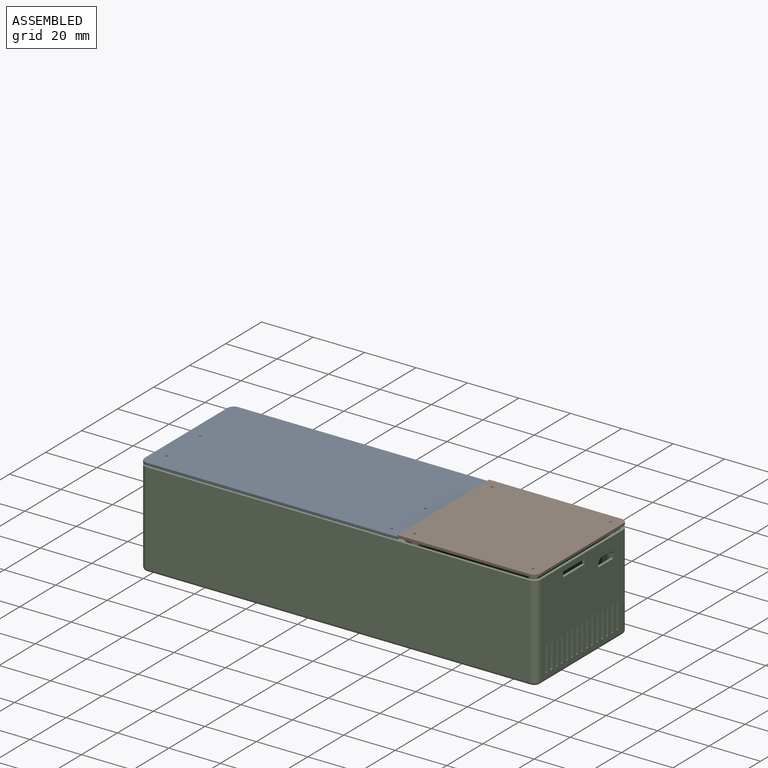
[diagram: assembled view]
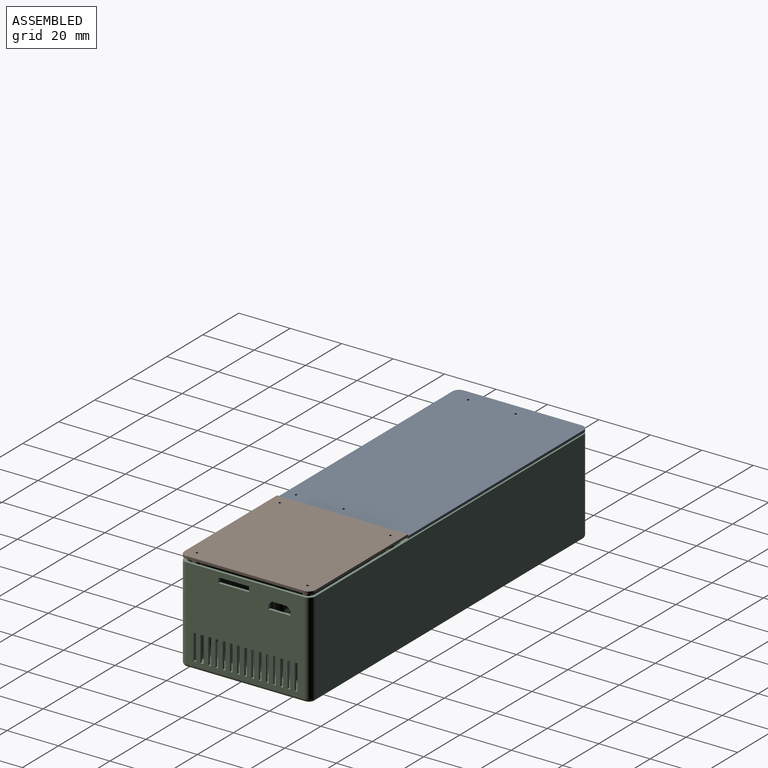
[diagram: assembled view, second angle]
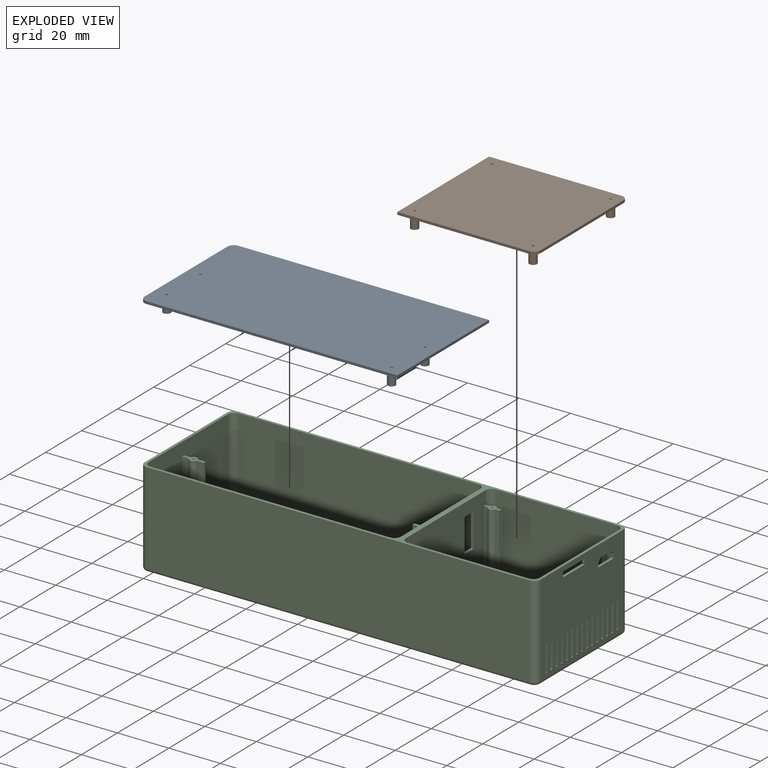
[diagram: exploded view]
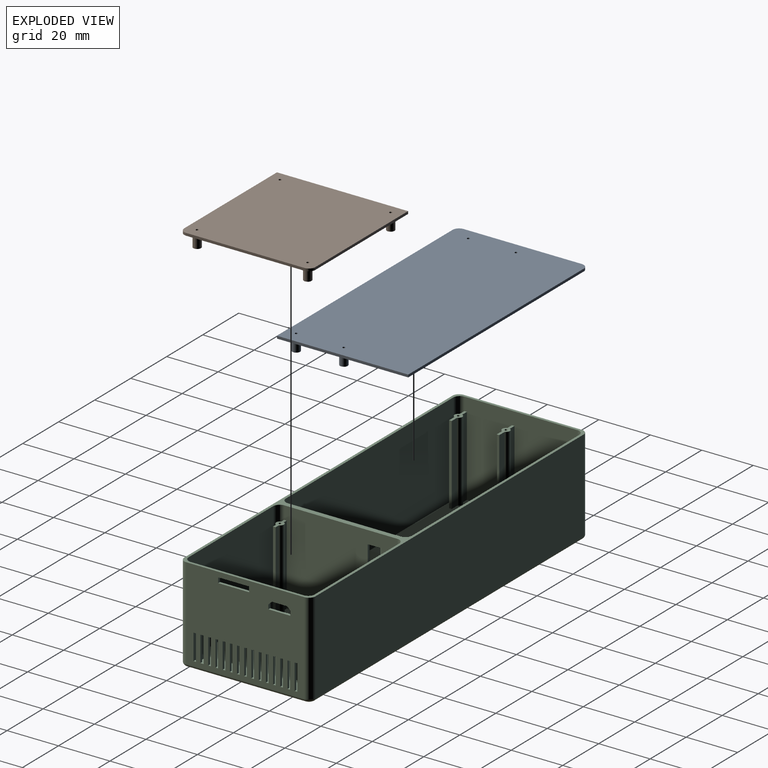
[diagram: exploded view, second angle]
ASSEMBLY  parts=3 mates=2
PART A: 20 faces, bbox 51x100x6.1 mm
  f0: plane 97.46x0.99mm, normal (-1,0,0), area 96.5mm2, adj f3,f4,f5,f18
  f1: plane 45.92x0.99mm, normal (0,-1,0), area 45.5mm2, adj f4,f5,f18,f19
  f2: plane 97.46x0.99mm, normal (1,0,0), area 96.5mm2, adj f3,f4,f5,f19
  f3: plane 51x0.99mm, normal (0,1,0), area 50.5mm2, adj f0,f2,f4,f5
  f4: plane 100x51mm, normal (0,0,1), area 5069.3mm2, adj f0,f1,f2,f3,f6,f8,f10,f12
  f5: plane 100x51mm, normal (0,0,-1), area 5094.5mm2, adj f0,f1,f2,f3,f14,f15,f16,f17
  f6: cylinder r=1.5mm len=5.08mm, axis (0,0,-1), area 47.8mm2, adj f4,f7
  f7: plane 3x3mm, normal (0,0,1), area 6.3mm2, adj f6,f14
  f8: cylinder r=1.5mm len=5.08mm, axis (0,0,-1), area 47.8mm2, adj f4,f9
  f9: plane 3x3mm, normal (0,0,1), area 6.3mm2, adj f8,f16
  f10: cylinder r=1.5mm len=5.08mm, axis (0,0,-1), area 47.8mm2, adj f4,f11
  f11: plane 3x3mm, normal (0,0,1), area 6.3mm2, adj f10,f17
  f12: cylinder r=1.5mm len=5.08mm, axis (0,0,-1), area 47.8mm2, adj f4,f13
  f13: plane 3x3mm, normal (0,0,1), area 6.3mm2, adj f12,f15
  f14: cylinder r=0.5mm len=6.07mm, axis (0,0,1), area 18.9mm2, adj f5,f7
  f15: cylinder r=0.5mm len=6.07mm, axis (0,0,1), area 18.9mm2, adj f5,f13
  f16: cylinder r=0.5mm len=6.07mm, axis (0,0,1), area 18.9mm2, adj f5,f9
  f17: cylinder r=0.5mm len=6.07mm, axis (0,0,1), area 18.9mm2, adj f5,f11
  f18: cylinder r=2.54mm len=2.54mm, axis (0,0,1), area 4mm2, adj f0,f1,f4,f5
  f19: cylinder r=2.54mm len=2.54mm, axis (0,0,-1), area 4mm2, adj f1,f2,f4,f5
PART B: 20 faces, bbox 54x51x6.1 mm
  f0: plane 45.9x0.99mm, normal (-1,0,0), area 45.5mm2, adj f4,f5,f18,f19
  f1: plane 51.46x0.99mm, normal (0,-1,0), area 51mm2, adj f2,f4,f5,f18
  f2: plane 50.98x0.99mm, normal (1,0,0), area 50.5mm2, adj f1,f3,f4,f5
  f3: plane 51.46x0.99mm, normal (0,1,0), area 51mm2, adj f2,f4,f5,f19
  f4: plane 54x50.98mm, normal (0,0,1), area 2721.8mm2, adj f0,f1,f2,f3,f6,f8,f10,f12
  f5: plane 54x50.98mm, normal (0,0,-1), area 2747mm2, adj f0,f1,f2,f3,f14,f15,f16,f17
  f6: cylinder r=1.5mm len=5.08mm, axis (0,0,-1), area 47.8mm2, adj f4,f7
  f7: plane 3x3mm, normal (0,0,1), area 6.3mm2, adj f6,f16
  f8: cylinder r=1.5mm len=5.08mm, axis (0,0,-1), area 47.8mm2, adj f4,f9
  f9: plane 3x3mm, normal (0,0,1), area 6.3mm2, adj f8,f15
  f10: cylinder r=1.5mm len=5.08mm, axis (0,0,-1), area 47.8mm2, adj f4,f11
  f11: plane 3x3mm, normal (0,0,1), area 6.3mm2, adj f10,f14
  f12: cylinder r=1.5mm len=5.08mm, axis (0,0,-1), area 47.8mm2, adj f4,f13
  f13: plane 3x3mm, normal (0,0,1), area 6.3mm2, adj f12,f17
  f14: cylinder r=0.5mm len=6.07mm, axis (0,0,1), area 18.9mm2, adj f5,f11
  f15: cylinder r=0.5mm len=6.07mm, axis (0,0,1), area 18.9mm2, adj f5,f9
  f16: cylinder r=0.5mm len=6.07mm, axis (0,0,1), area 18.9mm2, adj f5,f7
  f17: cylinder r=0.5mm len=6.07mm, axis (0,0,1), area 18.9mm2, adj f5,f13
  f18: cylinder r=2.54mm len=2.54mm, axis (0,0,1), area 4mm2, adj f0,f1,f4,f5
  f19: cylinder r=2.54mm len=2.54mm, axis (0,0,-1), area 4mm2, adj f0,f3,f4,f5
PART C: 244 faces, bbox 154.4x51.4x37 mm
  f0: plane 98.02x49.02mm, normal (0,0,1), area 4336.3mm2, adj f1,f2,f3,f4,f5,f6,f7,f8
  f1: cylinder r=1.5mm len=30.91mm, axis (0,0,-1), area 114.3mm2, adj f0,f196,f220,f222
  f2: plane 43.94x35.99mm, normal (1,0,0), area 1520.6mm2, adj f0,f36,f193,f196,f215,f216,f220,f227
  f3: cylinder r=1.5mm len=30.91mm, axis (0,0,-1), area 114.3mm2, adj f0,f196,f221,f223
  f4: cylinder r=1.5mm len=30.91mm, axis (0,0,-1), area 114.3mm2, adj f0,f193,f215,f217
  f5: cylinder r=1.5mm len=30.91mm, axis (0,0,-1), area 114.3mm2, adj f0,f193,f216,f218
  f6: cylinder r=1.5mm len=30.91mm, axis (0,0,-1), area 114.3mm2, adj f0,f194,f210,f212
  f7: plane 43.94x35.99mm, normal (-1,0,0), area 1327mm2, adj f0,f36,f189,f190,f191,f192,f194,f195
  f8: cylinder r=1.5mm len=30.91mm, axis (0,0,-1), area 114.3mm2, adj f0,f194,f211,f213
  f9: cylinder r=1.5mm len=30.91mm, axis (0,0,-1), area 114.3mm2, adj f0,f195,f205,f207
  f10: cylinder r=1.5mm len=30.91mm, axis (0,0,-1), area 114.3mm2, adj f0,f195,f206,f208
  f11: plane 5x0.99mm, normal (0,0,-1), area 5mm2, adj f12,f14,f16,f188
  f12: plane 13.01x0.99mm, normal (0,-1,0), area 12.9mm2, adj f11,f13,f16,f188
  f13: plane 5x0.99mm, normal (0,0,1), area 5mm2, adj f12,f14,f16,f188
  f14: plane 13.01x0.99mm, normal (0,1,0), area 12.9mm2, adj f11,f13,f16,f188
  f15: plane 92.94x35.99mm, normal (0,1,0), area 3345mm2, adj f0,f36,f225,f228
  f16: plane 43.94x35.99mm, normal (1,0,0), area 1456.7mm2, adj f11,f12,f13,f14,f21,f36,f46,f47
  f17: plane 43.94x35.99mm, normal (-1,0,0), area 1322.2mm2, adj f21,f36,f44,f45,f56,f57,f58,f59
  f18: plane 45.92x35.71mm, normal (1,0,0), area 1440.3mm2, adj f36,f56,f57,f58,f59,f60,f61,f62
  f19: cylinder r=1.5mm len=15.27mm, axis (0,0,-1), area 20.5mm2, adj f21,f143,f162,f169
  f20: cylinder r=1.5mm len=15.27mm, axis (0,0,-1), area 20.5mm2, adj f21,f143,f158,f165
  f21: plane 52.02x49.02mm, normal (0,0,1), area 2478.6mm2, adj f16,f17,f19,f20,f22,f23,f24,f25
  f22: cylinder r=1.5mm len=15.27mm, axis (0,0,-1), area 20.5mm2, adj f21,f143,f161,f166
  f23: cylinder r=1.5mm len=15.27mm, axis (0,0,-1), area 20.5mm2, adj f21,f143,f160,f167
  f24: cylinder r=1.5mm len=15.27mm, axis (0,0,-1), area 20.5mm2, adj f21,f140,f150,f157
  f25: cylinder r=1.5mm len=15.27mm, axis (0,0,-1), area 20.5mm2, adj f21,f140,f146,f153
  f26: cylinder r=1.5mm len=15.27mm, axis (0,0,-1), area 20.5mm2, adj f21,f140,f149,f154
  f27: cylinder r=1.5mm len=15.27mm, axis (0,0,-1), area 20.5mm2, adj f21,f140,f148,f155
  f28: cylinder r=1.5mm len=30.91mm, axis (0,0,1), area 114.5mm2, adj f21,f46,f135,f137
  f29: cylinder r=1.5mm len=30.91mm, axis (0,0,1), area 114.5mm2, adj f21,f47,f130,f132
  f30: cylinder r=1.5mm len=30.91mm, axis (0,0,1), area 114.5mm2, adj f21,f45,f126,f128
  f31: cylinder r=1.5mm len=30.91mm, axis (0,0,1), area 114.5mm2, adj f21,f44,f121,f123
  f32: cylinder r=1.5mm len=30.91mm, axis (0,0,1), area 114.5mm2, adj f21,f47,f131,f134
  f33: cylinder r=1.5mm len=30.91mm, axis (0,0,1), area 114.5mm2, adj f21,f44,f120,f122
  f34: cylinder r=1.5mm len=30.91mm, axis (0,0,1), area 114.5mm2, adj f21,f46,f136,f139
  f35: cylinder r=1.5mm len=30.91mm, axis (0,0,1), area 114.5mm2, adj f21,f45,f125,f127
  f36: plane 154x51mm, normal (0,0,1), area 504.9mm2, adj f2,f7,f15,f16,f17,f18,f37,f38
  f37: plane 148.92x35.71mm, normal (0,-1,0), area 5318.3mm2, adj f36,f176,f178,f187
  f38: plane 148.92x35.71mm, normal (0,1,0), area 5318.3mm2, adj f36,f177,f179,f180
  f39: plane 151.46x48.46mm, normal (0,0,-1), area 7309.9mm2, adj f180,f181,f182,f183,f184,f185,f186,f187
  f40: plane 46.94x35.99mm, normal (0,1,0), area 1689.4mm2, adj f21,f36,f229,f230
  f41: plane 46.94x35.99mm, normal (0,-1,0), area 1689.4mm2, adj f21,f36,f231,f232
  f42: plane 45.92x35.71mm, normal (-1,0,0), area 1639.9mm2, adj f36,f176,f177,f183
  f43: plane 92.94x35.99mm, normal (0,-1,0), area 3345mm2, adj f0,f36,f226,f227
  f44: plane 6.18x3mm, normal (0,0,1), area 9.5mm2, adj f17,f31,f33,f49,f120,f121,f122,f123
  f45: plane 6.18x3mm, normal (0,0,1), area 9.5mm2, adj f17,f30,f35,f51,f125,f126,f127,f128
  f46: plane 6.18x3mm, normal (0,0,1), area 9.5mm2, adj f16,f28,f34,f53,f135,f136,f137,f138
  f47: plane 6.18x3mm, normal (0,0,1), area 9.5mm2, adj f16,f29,f32,f55,f130,f131,f132,f133
  f48: plane 0.99x0.99mm, normal (0,0,1), area 0.8mm2, adj f49
  f49: cylinder r=0.5mm len=20.32mm, axis (0,0,1), area 63.2mm2, adj f44,f48
  f50: plane 0.99x0.99mm, normal (0,0,1), area 0.8mm2, adj f51
  f51: cylinder r=0.5mm len=20.32mm, axis (0,0,1), area 63.2mm2, adj f45,f50
  f52: plane 0.99x0.99mm, normal (0,0,1), area 0.8mm2, adj f53
  f53: cylinder r=0.5mm len=20.32mm, axis (0,0,1), area 63.2mm2, adj f46,f52
  f54: plane 0.99x0.99mm, normal (0,0,1), area 0.8mm2, adj f55
  f55: cylinder r=0.5mm len=20.32mm, axis (0,0,1), area 63.2mm2, adj f47,f54
  f56: plane 0.99x0.99mm, normal (0,0,-1), area 1mm2, adj f17,f18,f57,f59
  f57: plane 10.01x0.99mm, normal (0,1,0), area 9.9mm2, adj f17,f18,f56,f58
  f58: plane 0.99x0.99mm, normal (0,0,1), area 1mm2, adj f17,f18,f57,f59
  f59: plane 10.01x0.99mm, normal (0,-1,0), area 9.9mm2, adj f17,f18,f56,f58
  f60: plane 0.99x0.99mm, normal (0,0,-1), area 1mm2, adj f17,f18,f61,f63
  f61: plane 10.01x0.99mm, normal (0,1,0), area 9.9mm2, adj f17,f18,f60,f62
  f62: plane 0.99x0.99mm, normal (0,0,1), area 1mm2, adj f17,f18,f61,f63
  f63: plane 10.01x0.99mm, normal (0,-1,0), area 9.9mm2, adj f17,f18,f60,f62
  f64: plane 0.99x0.99mm, normal (0,0,-1), area 1mm2, adj f17,f18,f65,f67
  f65: plane 10.01x0.99mm, normal (0,1,0), area 9.9mm2, adj f17,f18,f64,f66
  f66: plane 0.99x0.99mm, normal (0,0,1), area 1mm2, adj f17,f18,f65,f67
  f67: plane 10.01x0.99mm, normal (0,-1,0), area 9.9mm2, adj f17,f18,f64,f66
  f68: plane 0.99x0.99mm, normal (0,0,-1), area 1mm2, adj f17,f18,f69,f71
  f69: plane 10.01x0.99mm, normal (0,1,0), area 9.9mm2, adj f17,f18,f68,f70
  f70: plane 0.99x0.99mm, normal (0,0,1), area 1mm2, adj f17,f18,f69,f71
  f71: plane 10.01x0.99mm, normal (0,-1,0), area 9.9mm2, adj f17,f18,f68,f70
  f72: plane 0.99x0.99mm, normal (0,0,-1), area 1mm2, adj f17,f18,f73,f75
  f73: plane 10.01x0.99mm, normal (0,1,0), area 9.9mm2, adj f17,f18,f72,f74
  f74: plane 0.99x0.99mm, normal (0,0,1), area 1mm2, adj f17,f18,f73,f75
  f75: plane 10.01x0.99mm, normal (0,-1,0), area 9.9mm2, adj f17,f18,f72,f74
  f76: plane 0.99x0.99mm, normal (0,0,-1), area 1mm2, adj f17,f18,f77,f79
  f77: plane 10.01x0.99mm, normal (0,1,0), area 9.9mm2, adj f17,f18,f76,f78
  f78: plane 0.99x0.99mm, normal (0,0,1), area 1mm2, adj f17,f18,f77,f79
  f79: plane 10.01x0.99mm, normal (0,-1,0), area 9.9mm2, adj f17,f18,f76,f78
  f80: plane 0.99x0.99mm, normal (0,0,-1), area 1mm2, adj f17,f18,f81,f83
  f81: plane 10.01x0.99mm, normal (0,1,0), area 9.9mm2, adj f17,f18,f80,f82
  f82: plane 0.99x0.99mm, normal (0,0,1), area 1mm2, adj f17,f18,f81,f83
  f83: plane 10.01x0.99mm, normal (0,-1,0), area 9.9mm2, adj f17,f18,f80,f82
  f84: plane 0.99x0.99mm, normal (0,0,-1), area 1mm2, adj f17,f18,f85,f87
  f85: plane 10.01x0.99mm, normal (0,1,0), area 9.9mm2, adj f17,f18,f84,f86
  f86: plane 0.99x0.99mm, normal (0,0,1), area 1mm2, adj f17,f18,f85,f87
  f87: plane 10.01x0.99mm, normal (0,-1,0), area 9.9mm2, adj f17,f18,f84,f86
  f88: plane 0.99x0.99mm, normal (0,0,-1), area 1mm2, adj f17,f18,f89,f91
  f89: plane 10.01x0.99mm, normal (0,1,0), area 9.9mm2, adj f17,f18,f88,f90
  f90: plane 0.99x0.99mm, normal (0,0,1), area 1mm2, adj f17,f18,f89,f91
  f91: plane 10.01x0.99mm, normal (0,-1,0), area 9.9mm2, adj f17,f18,f88,f90
  f92: plane 0.99x0.99mm, normal (0,0,-1), area 1mm2, adj f17,f18,f93,f95
  f93: plane 10.01x0.99mm, normal (0,1,0), area 9.9mm2, adj f17,f18,f92,f94
  f94: plane 0.99x0.99mm, normal (0,0,1), area 1mm2, adj f17,f18,f93,f95
  f95: plane 10.01x0.99mm, normal (0,-1,0), area 9.9mm2, adj f17,f18,f92,f94
  f96: plane 0.99x0.99mm, normal (0,0,-1), area 1mm2, adj f17,f18,f97,f99
  f97: plane 10.01x0.99mm, normal (0,1,0), area 9.9mm2, adj f17,f18,f96,f98
  f98: plane 0.99x0.99mm, normal (0,0,1), area 1mm2, adj f17,f18,f97,f99
  f99: plane 10.01x0.99mm, normal (0,-1,0), area 9.9mm2, adj f17,f18,f96,f98
  f100: plane 0.99x0.99mm, normal (0,0,-1), area 1mm2, adj f17,f18,f101,f103
  f101: plane 10.01x0.99mm, normal (0,1,0), area 9.9mm2, adj f17,f18,f100,f102
  f102: plane 0.99x0.99mm, normal (0,0,1), area 1mm2, adj f17,f18,f101,f103
  f103: plane 10.01x0.99mm, normal (0,-1,0), area 9.9mm2, adj f17,f18,f100,f102
  f104: plane 0.99x0.99mm, normal (0,0,-1), area 1mm2, adj f17,f18,f105,f107
  f105: plane 10.01x0.99mm, normal (0,1,0), area 9.9mm2, adj f17,f18,f104,f106
  f106: plane 0.99x0.99mm, normal (0,0,1), area 1mm2, adj f17,f18,f105,f107
  f107: plane 10.01x0.99mm, normal (0,-1,0), area 9.9mm2, adj f17,f18,f104,f106
  f108: plane 1.29x0.99mm, normal (0,0,-1), area 1.3mm2, adj f17,f18,f109,f111
  f109: plane 10.01x0.99mm, normal (0,1,0), area 9.9mm2, adj f17,f18,f108,f110
  f110: plane 1.29x0.99mm, normal (0,0,1), area 1.3mm2, adj f17,f18,f109,f111
  f111: plane 10.01x0.99mm, normal (0,-1,0), area 9.9mm2, adj f17,f18,f108,f110
  f112: plane 10.01x0.99mm, normal (0,1,0), area 9.9mm2, adj f17,f18,f113,f115
  f113: plane 0.99x0.98mm, normal (0,0,1), area 1mm2, adj f17,f18,f112,f114
  f114: plane 10.01x0.99mm, normal (0,-1,0), area 9.9mm2, adj f17,f18,f113,f115
  f115: plane 0.99x0.98mm, normal (0,0,-1), area 1mm2, adj f17,f18,f112,f114
  f116: plane 11.99x0.99mm, normal (0,0,-1), area 11.9mm2, adj f17,f18,f117,f119
  f117: plane 2.01x0.99mm, normal (0,1,0), area 2mm2, adj f17,f18,f116,f118
  f118: plane 11.99x0.99mm, normal (0,0,1), area 11.9mm2, adj f17,f18,f117,f119
  f119: plane 2.01x0.99mm, normal (0,-1,0), area 2mm2, adj f17,f18,f116,f118
  f120: plane 30.91x1.59mm, normal (0,-1,0), area 49.3mm2, adj f17,f21,f33,f44
  f121: plane 30.91x1.59mm, normal (0,1,0), area 49.3mm2, adj f21,f31,f44,f231
  f122: plane 30.91x1.76mm, normal (0,-1,0), area 54.4mm2, adj f21,f33,f44,f124
  f123: plane 30.91x1.76mm, normal (0,1,0), area 54.4mm2, adj f21,f31,f44,f124
  f124: plane 30.91x0.99mm, normal (-1,0,0), area 30.6mm2, adj f21,f44,f122,f123
  f125: plane 30.91x1.59mm, normal (0,-1,0), area 49.3mm2, adj f21,f35,f45,f230
  f126: plane 30.91x1.59mm, normal (0,1,0), area 49.3mm2, adj f17,f21,f30,f45
  f127: plane 30.91x1.76mm, normal (0,-1,0), area 54.4mm2, adj f21,f35,f45,f129
  f128: plane 30.91x1.76mm, normal (0,1,0), area 54.4mm2, adj f21,f30,f45,f129
  f129: plane 30.91x0.99mm, normal (-1,0,0), area 30.6mm2, adj f21,f45,f127,f128
  f130: plane 30.91x1.59mm, normal (0,-1,0), area 49.3mm2, adj f21,f29,f47,f229
  f131: plane 30.91x1.59mm, normal (0,1,0), area 49.3mm2, adj f16,f21,f32,f47
  f132: plane 30.91x1.76mm, normal (0,-1,0), area 54.4mm2, adj f21,f29,f47,f133
  f133: plane 30.91x0.99mm, normal (1,0,0), area 30.6mm2, adj f21,f47,f132,f134
  f134: plane 30.91x1.76mm, normal (0,1,0), area 54.4mm2, adj f21,f32,f47,f133
  f135: plane 30.91x1.59mm, normal (0,-1,0), area 49.3mm2, adj f16,f21,f28,f46
  f136: plane 30.91x1.59mm, normal (0,1,0), area 49.3mm2, adj f21,f34,f46,f232
  f137: plane 30.91x1.76mm, normal (0,-1,0), area 54.4mm2, adj f21,f28,f46,f138
  f138: plane 30.91x0.99mm, normal (1,0,0), area 30.6mm2, adj f21,f46,f137,f139
  f139: plane 30.91x1.76mm, normal (0,1,0), area 54.4mm2, adj f21,f34,f46,f138
  f140: plane 5.59x5.59mm, normal (0,0,1), area 11.5mm2, adj f24,f25,f26,f27,f142,f146,f147,f148
  f141: plane 0.99x0.99mm, normal (0,0,1), area 0.8mm2, adj f142
  f142: cylinder r=0.5mm len=15.16mm, axis (0,0,1), area 47.2mm2, adj f140,f141
  f143: plane 5.59x5.59mm, normal (0,0,1), area 11.5mm2, adj f19,f20,f22,f23,f145,f158,f159,f160
  f144: plane 0.99x0.99mm, normal (0,0,1), area 0.8mm2, adj f145
  f145: cylinder r=0.5mm len=15.16mm, axis (0,0,1), area 47.2mm2, adj f143,f144
  f146: plane 15.27x1.38mm, normal (0,-1,0), area 21.1mm2, adj f21,f25,f140,f147
  f147: plane 15.27x0.99mm, normal (1,0,0), area 15.1mm2, adj f21,f140,f146,f148
  f148: plane 15.27x1.38mm, normal (0,1,0), area 21.1mm2, adj f21,f27,f140,f147
  f149: plane 15.27x1.38mm, normal (0,-1,0), area 21.1mm2, adj f21,f26,f140,f151
  f150: plane 15.27x1.38mm, normal (0,1,0), area 21.1mm2, adj f21,f24,f140,f151
  f151: plane 15.27x0.99mm, normal (-1,0,0), area 15.1mm2, adj f21,f140,f149,f150
  f152: plane 15.27x0.99mm, normal (0,-1,0), area 15.1mm2, adj f21,f140,f153,f154
  f153: plane 15.27x1.38mm, normal (1,0,0), area 21.1mm2, adj f21,f25,f140,f152
  f154: plane 15.27x1.38mm, normal (-1,0,0), area 21.1mm2, adj f21,f26,f140,f152
  f155: plane 15.27x1.38mm, normal (1,0,0), area 21.1mm2, adj f21,f27,f140,f156
  f156: plane 15.27x0.99mm, normal (0,1,0), area 15.1mm2, adj f21,f140,f155,f157
  f157: plane 15.27x1.38mm, normal (-1,0,0), area 21.1mm2, adj f21,f24,f140,f156
  f158: plane 15.27x1.38mm, normal (0,-1,0), area 21.1mm2, adj f20,f21,f143,f159
  f159: plane 15.27x0.99mm, normal (1,0,0), area 15.1mm2, adj f21,f143,f158,f160
  f160: plane 15.27x1.38mm, normal (0,1,0), area 21.1mm2, adj f21,f23,f143,f159
  f161: plane 15.27x1.38mm, normal (0,-1,0), area 21.1mm2, adj f21,f22,f143,f163
  f162: plane 15.27x1.38mm, normal (0,1,0), area 21.1mm2, adj f19,f21,f143,f163
  f163: plane 15.27x0.99mm, normal (-1,0,0), area 15.1mm2, adj f21,f143,f161,f162
  f164: plane 15.27x0.99mm, normal (0,-1,0), area 15.1mm2, adj f21,f143,f165,f166
  f165: plane 15.27x1.38mm, normal (1,0,0), area 21.1mm2, adj f20,f21,f143,f164
  f166: plane 15.27x1.38mm, normal (-1,0,0), area 21.1mm2, adj f21,f22,f143,f164
  f167: plane 15.27x1.38mm, normal (1,0,0), area 21.1mm2, adj f21,f23,f143,f168
  f168: plane 15.27x0.99mm, normal (0,1,0), area 15.1mm2, adj f21,f143,f167,f169
  f169: plane 15.27x1.38mm, normal (-1,0,0), area 21.1mm2, adj f19,f21,f143,f168
  f170: plane 1.73x0.99mm, normal (0,-1,0), area 1.7mm2, adj f17,f18,f173,f174
  f171: plane 5.97x0.99mm, normal (0,0,-1), area 5.9mm2, adj f17,f18,f174,f175
  f172: plane 1.73x0.99mm, normal (0,1,0), area 1.7mm2, adj f17,f18,f173,f175
  f173: plane 8.51x0.99mm, normal (0,0,1), area 8.4mm2, adj f17,f18,f170,f172
  f174: plane 1.27x1.27mm, normal (0,-0.71,-0.71), area 1.8mm2, adj f17,f18,f170,f171
  f175: plane 1.27x1.27mm, normal (0,0.71,-0.71), area 1.8mm2, adj f17,f18,f171,f172
  f176: cylinder r=2.54mm len=35.71mm, axis (0,0,1), area 142.5mm2, adj f36,f37,f42,f185
  f177: cylinder r=2.54mm len=35.71mm, axis (0,0,-1), area 142.5mm2, adj f36,f38,f42,f181
  f178: cylinder r=2.54mm len=35.71mm, axis (0,0,-1), area 142.5mm2, adj f18,f36,f37,f186
  f179: cylinder r=2.54mm len=35.71mm, axis (0,0,1), area 142.5mm2, adj f18,f36,f38,f182
  f180: cylinder r=1.27mm len=148.92mm, axis (-1,0,0), area 297.1mm2, adj f38,f39,f181,f182
  f181: torus R=1.27mm, axis (0,0,1), area 6.5mm2, adj f39,f177,f180,f183
  f182: torus R=1.27mm, axis (0,0,1), area 6.5mm2, adj f39,f179,f180,f184
  f183: cylinder r=1.27mm len=45.92mm, axis (0,-1,0), area 91.6mm2, adj f39,f42,f181,f185
  f184: cylinder r=1.27mm len=45.92mm, axis (0,1,0), area 91.6mm2, adj f18,f39,f182,f186
  f185: torus R=1.27mm, axis (0,0,1), area 6.5mm2, adj f39,f176,f183,f187
  f186: torus R=1.27mm, axis (0,0,1), area 6.5mm2, adj f39,f178,f184,f187
  f187: cylinder r=1.27mm len=148.92mm, axis (1,0,0), area 297.1mm2, adj f37,f39,f185,f186
  f188: plane 17.07x8.18mm, normal (-1,0,0), area 74.5mm2, adj f11,f12,f13,f14,f189,f190,f191,f192
  f189: plane 10.16x0.99mm, normal (-0.71,0,-0.71), area 12.8mm2, adj f7,f188,f190,f191
  f190: plane 19.05x0.99mm, normal (-0.71,0.71,0), area 25.3mm2, adj f7,f188,f189,f192
  f191: plane 19.05x0.99mm, normal (-0.71,-0.71,0), area 25.3mm2, adj f7,f188,f189,f192
  f192: plane 10.16x0.99mm, normal (-0.71,0,0.71), area 12.8mm2, adj f7,f188,f190,f191
  f193: plane 8.43x3mm, normal (0,0,1), area 11.7mm2, adj f2,f4,f5,f197,f215,f216,f217,f218
  f194: plane 8.43x3mm, normal (0,0,1), area 11.7mm2, adj f6,f7,f8,f201,f210,f211,f212,f213
  f195: plane 8.43x3mm, normal (0,0,1), area 11.7mm2, adj f7,f9,f10,f203,f205,f206,f207,f208
  f196: plane 8.43x3mm, normal (0,0,1), area 11.7mm2, adj f1,f2,f3,f199,f220,f221,f222,f223
  f197: cylinder r=0.5mm len=25.4mm, axis (0,0,1), area 79mm2, adj f193,f198
  f198: plane 0.99x0.99mm, normal (0,0,1), area 0.8mm2, adj f197
  f199: cylinder r=0.5mm len=25.4mm, axis (0,0,1), area 79mm2, adj f196,f200
  f200: plane 0.99x0.99mm, normal (0,0,1), area 0.8mm2, adj f199
  f201: cylinder r=0.5mm len=25.4mm, axis (0,0,1), area 79mm2, adj f194,f202
  f202: plane 0.99x0.99mm, normal (0,0,1), area 0.8mm2, adj f201
  f203: cylinder r=0.5mm len=25.4mm, axis (0,0,1), area 79mm2, adj f195,f204
  f204: plane 0.99x0.99mm, normal (0,0,1), area 0.8mm2, adj f203
  f205: plane 30.91x2.57mm, normal (0,-1,0), area 79.5mm2, adj f0,f9,f195,f225
  f206: plane 30.91x2.57mm, normal (0,1,0), area 79.5mm2, adj f0,f7,f10,f195
  f207: plane 30.91x3.03mm, normal (0,-1,0), area 93.7mm2, adj f0,f9,f195,f209
  f208: plane 30.91x3.03mm, normal (0,1,0), area 93.7mm2, adj f0,f10,f195,f209
  f209: plane 30.91x0.99mm, normal (-1,0,0), area 30.6mm2, adj f0,f195,f207,f208
  f210: plane 30.91x2.57mm, normal (0,-1,0), area 79.5mm2, adj f0,f6,f7,f194
  f211: plane 30.91x2.57mm, normal (0,1,0), area 79.5mm2, adj f0,f7,f8,f194
  f212: plane 30.91x3.03mm, normal (0,-1,0), area 93.7mm2, adj f0,f6,f194,f214
  f213: plane 30.91x3.03mm, normal (0,1,0), area 93.7mm2, adj f0,f8,f194,f214
  f214: plane 30.91x0.99mm, normal (-1,0,0), area 30.6mm2, adj f0,f194,f212,f213
  f215: plane 30.91x2.57mm, normal (0,1,0), area 79.5mm2, adj f0,f2,f4,f193
  f216: plane 30.91x2.57mm, normal (0,-1,0), area 79.5mm2, adj f0,f2,f5,f193
  f217: plane 30.91x3.03mm, normal (0,1,0), area 93.7mm2, adj f0,f4,f193,f219
  f218: plane 30.91x3.03mm, normal (0,-1,0), area 93.7mm2, adj f0,f5,f193,f219
  f219: plane 30.91x0.99mm, normal (1,0,0), area 30.6mm2, adj f0,f193,f217,f218
  f220: plane 30.91x2.57mm, normal (0,1,0), area 79.5mm2, adj f0,f1,f2,f196
  f221: plane 30.91x2.57mm, normal (0,-1,0), area 79.5mm2, adj f0,f3,f196,f228
  f222: plane 30.91x3.03mm, normal (0,1,0), area 93.7mm2, adj f0,f1,f196,f224
  f223: plane 30.91x3.03mm, normal (0,-1,0), area 93.7mm2, adj f0,f3,f196,f224
  f224: plane 30.91x0.99mm, normal (1,0,0), area 30.6mm2, adj f0,f196,f222,f223
  f225: cylinder r=2.54mm len=35.99mm, axis (0,0,-1), area 143.2mm2, adj f0,f7,f15,f36,f195,f205
  f226: cylinder r=2.54mm len=35.99mm, axis (0,0,-1), area 143.6mm2, adj f0,f7,f36,f43
  f227: cylinder r=2.54mm len=35.99mm, axis (0,0,-1), area 143.6mm2, adj f0,f2,f36,f43
  f228: cylinder r=2.54mm len=35.99mm, axis (0,0,-1), area 143.2mm2, adj f0,f2,f15,f36,f196,f221
  f229: cylinder r=2.54mm len=35.99mm, axis (0,0,-1), area 142.8mm2, adj f16,f21,f36,f40,f47,f130
  f230: cylinder r=2.54mm len=35.99mm, axis (0,0,-1), area 142.8mm2, adj f17,f21,f36,f40,f45,f125
  f231: cylinder r=2.54mm len=35.99mm, axis (0,0,-1), area 142.8mm2, adj f17,f21,f36,f41,f44,f121
  f232: cylinder r=2.54mm len=35.99mm, axis (0,0,-1), area 142.8mm2, adj f16,f21,f36,f41,f46,f136
  f233: plane 20.32x5.08mm, normal (1,0,0), area 103.2mm2, adj f0,f234,f236,f241
  f234: plane 20.32x5.08mm, normal (0,1,0), area 103.2mm2, adj f0,f233,f235,f239
  f235: plane 20.32x5.08mm, normal (-1,0,0), area 103.2mm2, adj f0,f234,f236,f238
  f236: plane 20.32x5.08mm, normal (0,-1,0), area 103.2mm2, adj f0,f233,f235,f240
  f237: plane 15.24x15.24mm, normal (0,0,1), area 86.1mm2, adj f238,f239,f240,f241,f243
  f238: plane 20.32x2.54mm, normal (-0.71,0,0.71), area 63.9mm2, adj f235,f237,f239,f240
  f239: plane 20.32x2.54mm, normal (0,0.71,0.71), area 63.9mm2, adj f234,f237,f238,f241
  f240: plane 20.32x2.54mm, normal (0,-0.71,0.71), area 63.9mm2, adj f236,f237,f238,f241
  f241: plane 20.32x2.54mm, normal (0.71,0,0.71), area 63.9mm2, adj f233,f237,f239,f240
  f242: cylinder r=3.01mm len=6.02mm, axis (0,0,1), area 90.8mm2, adj f39,f243
  f243: cone r=3.01mm half-angle=45deg, axis (0,0,1), area 166.4mm2, adj f237,f242
PLACE A rot(axis=(0.71,0.71,0),180deg) t=(-74.9,-59.94,38.55)mm
PLACE B rot(axis=(0,1,0),180deg) t=(-14.46,-45.78,39.19)mm
PLACE C t=(-6.3,-31.1,0)mm fixed
MATE slider B.f12 <-> C.f29  axis (0,0,-1) through (-37.27,-55.97,33.12)mm
MATE slider A.f10 <-> C.f9  axis (0,0,-1) through (-46.25,-55.95,32.48)mm
